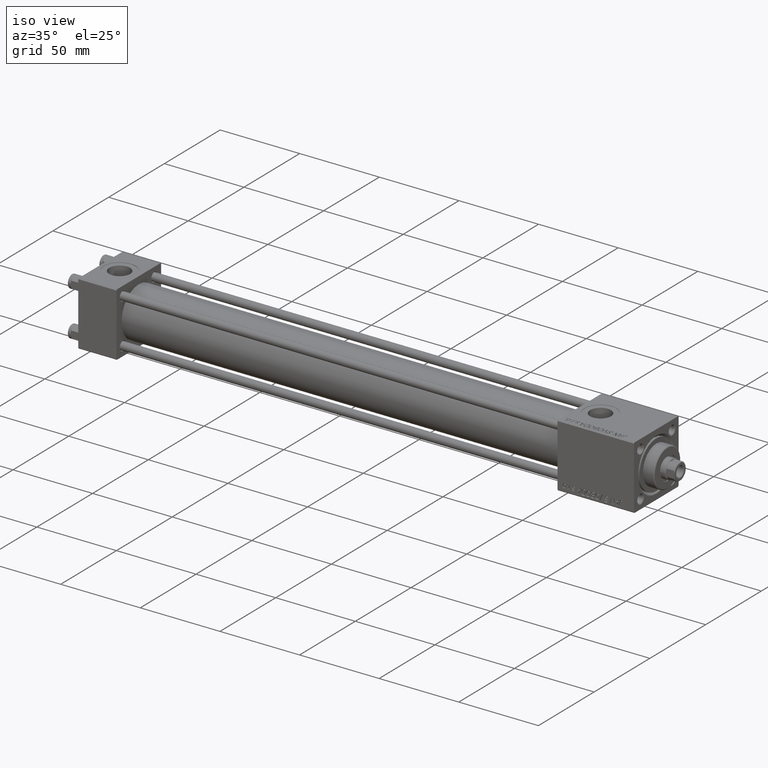
[diagram: clean part render]
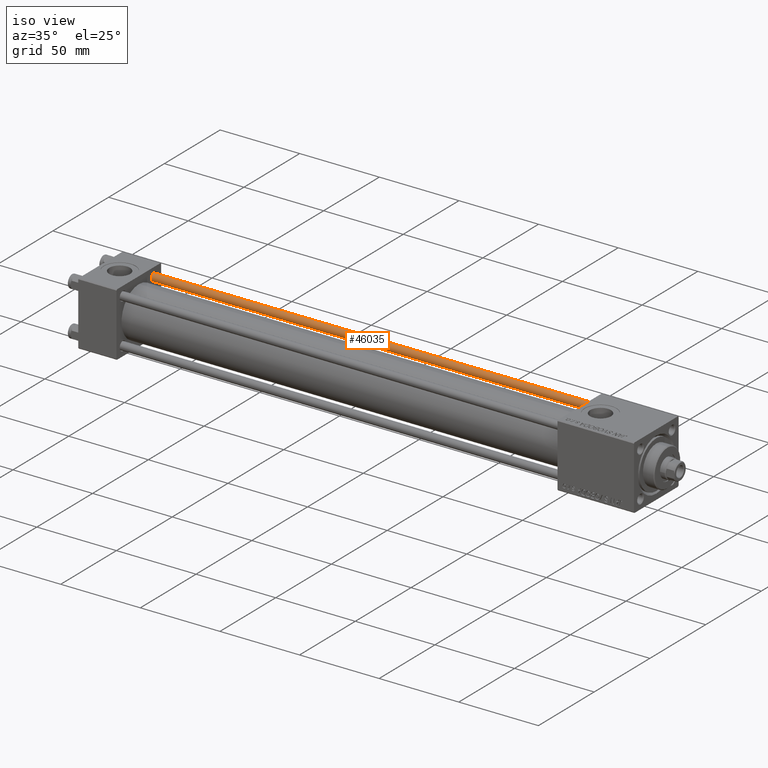
[diagram: same view with one face highlighted and labeled with its STEP entity id]
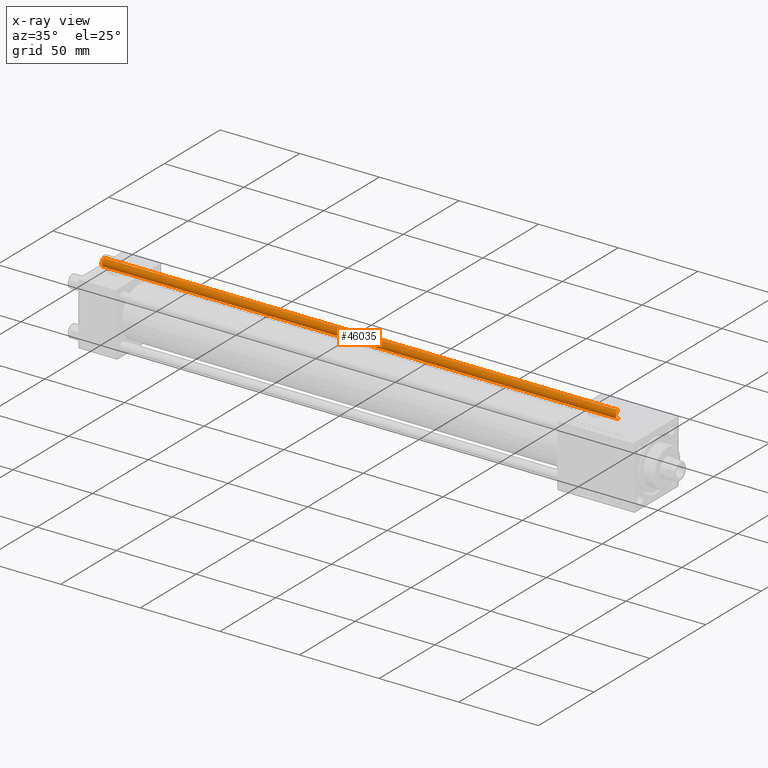
[diagram: x-ray of the same camera — body ghosted, the highlighted face saturated]
A machine part, iso view. The second image highlights one B-rep face of the part: STEP entity #46035.
The next image is the same camera in x-ray: the body ghosted, the highlighted face saturated — about 0% of this face is hidden behind the body in this view.
In plain terms, the highlighted cylindrical surface (edge-blend (fillet) strip) has radius 2.5 mm, axis along (-1, 0, 0).
Its self-contained STEP definition (entity closure, byte-faithful):
#1784 = VERTEX_POINT ( 'NONE', #9124 ) ;
#2028 = ORIENTED_EDGE ( 'NONE', *, *, #22590, .F. ) ;
#2168 = EDGE_CURVE ( 'NONE', #44368, #36742, #14619, .T. ) ;
#9124 = CARTESIAN_POINT ( 'NONE',  ( 2.500000000000000000, 3.061616997868383141E-16, 0.4999999999998894218 ) ) ;
#10151 = CARTESIAN_POINT ( 'NONE',  ( 2.500000000000000000, 3.061616997868383141E-16, 323.5000000000000568 ) ) ;
#10898 = DIRECTION ( 'NONE',  ( -0.000000000000000000, -0.000000000000000000, 1.000000000000000000 ) ) ;
#11164 = ORIENTED_EDGE ( 'NONE', *, *, #45622, .T. ) ;
#14576 = AXIS2_PLACEMENT_3D ( 'NONE', #17083, #17820, #28985 ) ;
#14619 = LINE ( 'NONE', #29822, #45411 ) ;
#14707 = CARTESIAN_POINT ( 'NONE',  ( 0.000000000000000000, 0.000000000000000000, 0.4999999999998894218 ) ) ;
#16263 = ORIENTED_EDGE ( 'NONE', *, *, #2168, .T. ) ;
#17083 = CARTESIAN_POINT ( 'NONE',  ( 0.000000000000000000, 0.000000000000000000, 324.0000000000000000 ) ) ;
#17820 = DIRECTION ( 'NONE',  ( -0.000000000000000000, -0.000000000000000000, -1.000000000000000000 ) ) ;
#18424 = DIRECTION ( 'NONE',  ( -0.000000000000000000, -0.000000000000000000, -1.000000000000000000 ) ) ;
#22590 = EDGE_CURVE ( 'NONE', #23381, #1784, #36322, .T. ) ;
#22732 = EDGE_LOOP ( 'NONE', ( #2028, #35603, #16263, #11164 ) ) ;
#23381 = VERTEX_POINT ( 'NONE', #10151 ) ;
#23715 = DIRECTION ( 'NONE',  ( 1.000000000000000000, 0.000000000000000000, 0.000000000000000000 ) ) ;
#24265 = CIRCLE ( 'NONE', #40479, 2.500000000000000000 ) ;
#25591 = DIRECTION ( 'NONE',  ( -0.000000000000000000, -0.000000000000000000, -1.000000000000000000 ) ) ;
#26354 = DIRECTION ( 'NONE',  ( 1.000000000000000000, 0.000000000000000000, 0.000000000000000000 ) ) ;
#28985 = DIRECTION ( 'NONE',  ( -1.000000000000000000, 0.000000000000000000, 0.000000000000000000 ) ) ;
#29230 = CYLINDRICAL_SURFACE ( 'NONE', #14576, 2.500000000000000000 ) ;
#29822 = CARTESIAN_POINT ( 'NONE',  ( -2.500000000000000000, 0.000000000000000000, 324.0000000000000000 ) ) ;
#30930 = EDGE_CURVE ( 'NONE', #23381, #44368, #45755, .T. ) ;
#35364 = DIRECTION ( 'NONE',  ( 0.000000000000000000, 0.000000000000000000, -1.000000000000000000 ) ) ;
#35603 = ORIENTED_EDGE ( 'NONE', *, *, #30930, .T. ) ;
#36322 = LINE ( 'NONE', #44854, #49057 ) ;
#36395 = CARTESIAN_POINT ( 'NONE',  ( -2.500000000000000000, 0.000000000000000000, 323.5000000000000568 ) ) ;
#36742 = VERTEX_POINT ( 'NONE', #37093 ) ;
#37093 = CARTESIAN_POINT ( 'NONE',  ( -2.500000000000000000, 0.000000000000000000, 0.4999999999998894218 ) ) ;
#38173 = CARTESIAN_POINT ( 'NONE',  ( 0.000000000000000000, 0.000000000000000000, 323.5000000000000568 ) ) ;
#40141 = FACE_OUTER_BOUND ( 'NONE', #22732, .T. ) ;
#40479 = AXIS2_PLACEMENT_3D ( 'NONE', #14707, #10898, #26354 ) ;
#44368 = VERTEX_POINT ( 'NONE', #36395 ) ;
#44854 = CARTESIAN_POINT ( 'NONE',  ( 2.500000000000000000, 3.061616997868383141E-16, 324.0000000000000000 ) ) ;
#45411 = VECTOR ( 'NONE', #18424, 1000.000000000000000 ) ;
#45622 = EDGE_CURVE ( 'NONE', #36742, #1784, #24265, .T. ) ;
#45755 = CIRCLE ( 'NONE', #46547, 2.500000000000000000 ) ;
#46035 = ADVANCED_FACE ( 'NONE', ( #40141 ), #29230, .T. ) ;
#46547 = AXIS2_PLACEMENT_3D ( 'NONE', #38173, #35364, #23715 ) ;
#49057 = VECTOR ( 'NONE', #25591, 1000.000000000000000 ) ;